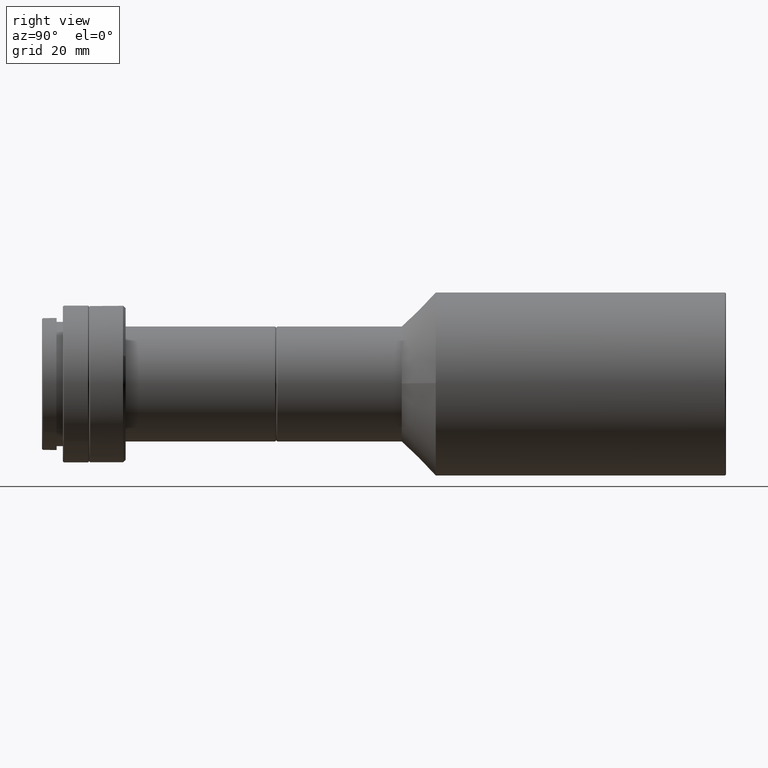
[diagram: clean part render]
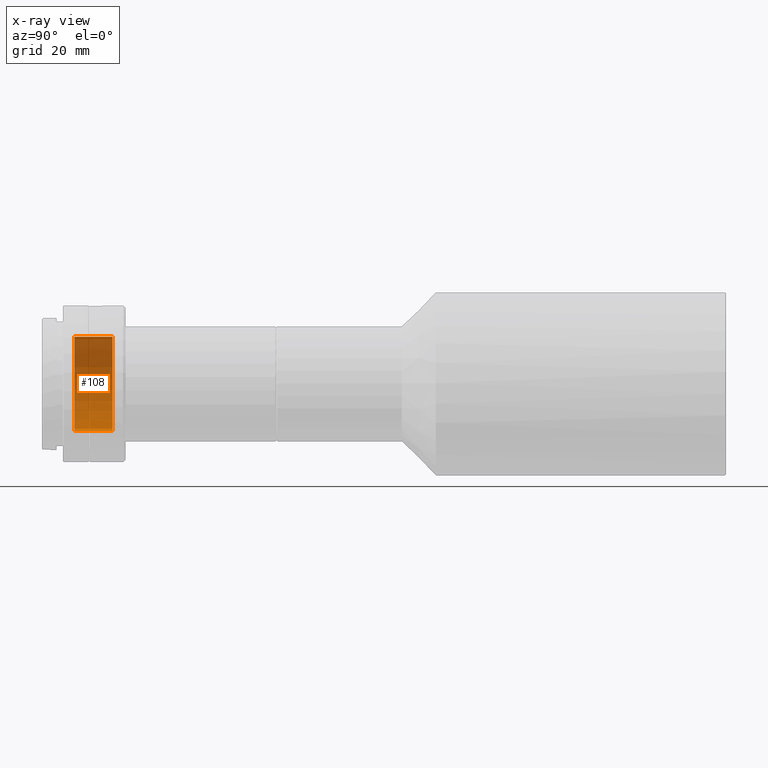
[diagram: x-ray — body ghosted, one internal face saturated and labeled with its STEP entity id]
A machine part, right view, then the same camera in x-ray: the body is ghosted and one INTERNAL B-rep face — a face not visible from any outside direction — is saturated and labeled: STEP entity #108.
In plain terms, the highlighted cylindrical surface (partial cylindrical patch) has radius 9 mm, axis along (0, 1, 0).
Its self-contained STEP definition (entity closure, byte-faithful):
#80 = CIRCLE ( 'NONE', #5104, 9.000000000000000000 ) ;
#108 = ADVANCED_FACE ( 'NONE', ( #4583 ), #4667, .T. ) ;
#161 = VECTOR ( 'NONE', #577, 1000.000000000000000 ) ;
#169 = DIRECTION ( 'NONE',  ( 0.000000000000000000, 1.000000000000000000, 0.000000000000000000 ) ) ;
#273 = AXIS2_PLACEMENT_3D ( 'NONE', #5031, #687, #4182 ) ;
#288 = ORIENTED_EDGE ( 'NONE', *, *, #3737, .F. ) ;
#577 = DIRECTION ( 'NONE',  ( 0.000000000000000000, 1.000000000000000000, 0.000000000000000000 ) ) ;
#683 = CARTESIAN_POINT ( 'NONE',  ( 0.000000000000000000, 0.1999999999999919897, 0.000000000000000000 ) ) ;
#687 = DIRECTION ( 'NONE',  ( 0.000000000000000000, 1.000000000000000000, 0.000000000000000000 ) ) ;
#732 = ORIENTED_EDGE ( 'NONE', *, *, #1266, .T. ) ;
#1022 = VERTEX_POINT ( 'NONE', #5591 ) ;
#1033 = CARTESIAN_POINT ( 'NONE',  ( 0.000000000000000000, 7.500000000000000000, 0.000000000000000000 ) ) ;
#1266 = EDGE_CURVE ( 'NONE', #3792, #1625, #80, .T. ) ;
#1435 = VERTEX_POINT ( 'NONE', #4876 ) ;
#1512 = ORIENTED_EDGE ( 'NONE', *, *, #5645, .F. ) ;
#1531 = DIRECTION ( 'NONE',  ( 0.000000000000000000, 0.000000000000000000, 1.000000000000000000 ) ) ;
#1614 = LINE ( 'NONE', #2143, #5216 ) ;
#1625 = VERTEX_POINT ( 'NONE', #4135 ) ;
#2135 = EDGE_CURVE ( 'NONE', #1625, #1022, #3188, .T. ) ;
#2143 = CARTESIAN_POINT ( 'NONE',  ( 1.102182119232617714E-15, 0.000000000000000000, -9.000000000000000000 ) ) ;
#2395 = ORIENTED_EDGE ( 'NONE', *, *, #2135, .T. ) ;
#2863 = DIRECTION ( 'NONE',  ( 0.000000000000000000, 0.000000000000000000, 1.000000000000000000 ) ) ;
#3188 = LINE ( 'NONE', #4412, #161 ) ;
#3372 = DIRECTION ( 'NONE',  ( 0.000000000000000000, 1.000000000000000000, 0.000000000000000000 ) ) ;
#3440 = AXIS2_PLACEMENT_3D ( 'NONE', #1033, #169, #1531 ) ;
#3737 = EDGE_CURVE ( 'NONE', #3792, #1435, #1614, .T. ) ;
#3792 = VERTEX_POINT ( 'NONE', #4746 ) ;
#3808 = CIRCLE ( 'NONE', #3440, 9.000000000000000000 ) ;
#3831 = DIRECTION ( 'NONE',  ( 0.000000000000000000, 1.000000000000000000, 0.000000000000000000 ) ) ;
#4135 = CARTESIAN_POINT ( 'NONE',  ( 0.000000000000000000, 0.1999999999999919897, 8.999999999999989342 ) ) ;
#4182 = DIRECTION ( 'NONE',  ( 0.000000000000000000, 0.000000000000000000, 1.000000000000000000 ) ) ;
#4412 = CARTESIAN_POINT ( 'NONE',  ( 0.000000000000000000, 0.000000000000000000, 9.000000000000000000 ) ) ;
#4583 = FACE_OUTER_BOUND ( 'NONE', #4688, .T. ) ;
#4667 = CYLINDRICAL_SURFACE ( 'NONE', #273, 9.000000000000000000 ) ;
#4688 = EDGE_LOOP ( 'NONE', ( #288, #732, #2395, #1512 ) ) ;
#4746 = CARTESIAN_POINT ( 'NONE',  ( 1.102182119232616531E-15, 0.1999999999999919897, -8.999999999999989342 ) ) ;
#4876 = CARTESIAN_POINT ( 'NONE',  ( 1.102182119232617714E-15, 7.500000000000000000, -9.000000000000000000 ) ) ;
#5031 = CARTESIAN_POINT ( 'NONE',  ( 0.000000000000000000, 0.000000000000000000, 0.000000000000000000 ) ) ;
#5104 = AXIS2_PLACEMENT_3D ( 'NONE', #683, #3372, #2863 ) ;
#5216 = VECTOR ( 'NONE', #3831, 1000.000000000000000 ) ;
#5591 = CARTESIAN_POINT ( 'NONE',  ( 0.000000000000000000, 7.500000000000000000, 9.000000000000000000 ) ) ;
#5645 = EDGE_CURVE ( 'NONE', #1435, #1022, #3808, .T. ) ;